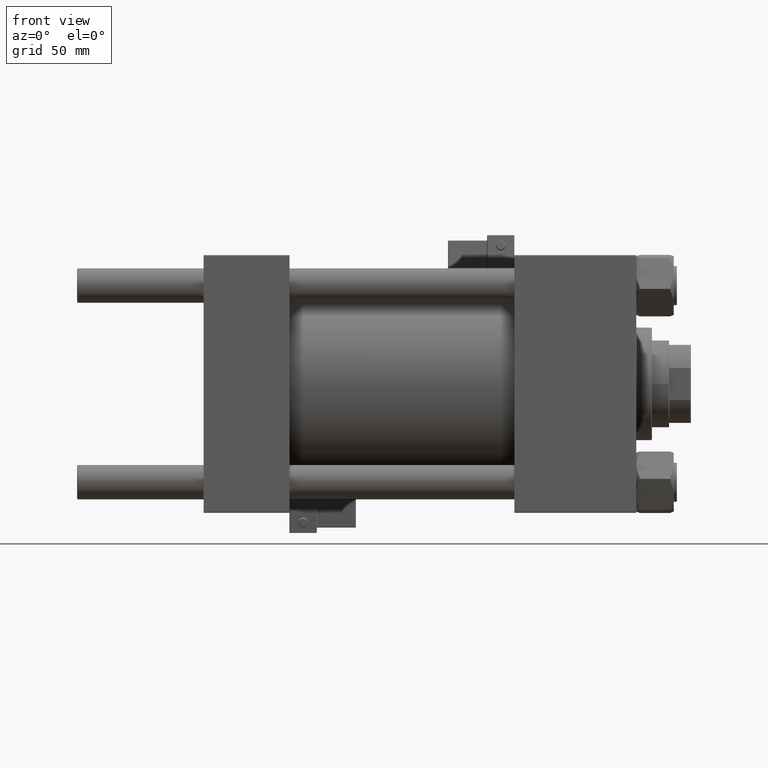
[diagram: clean part render]
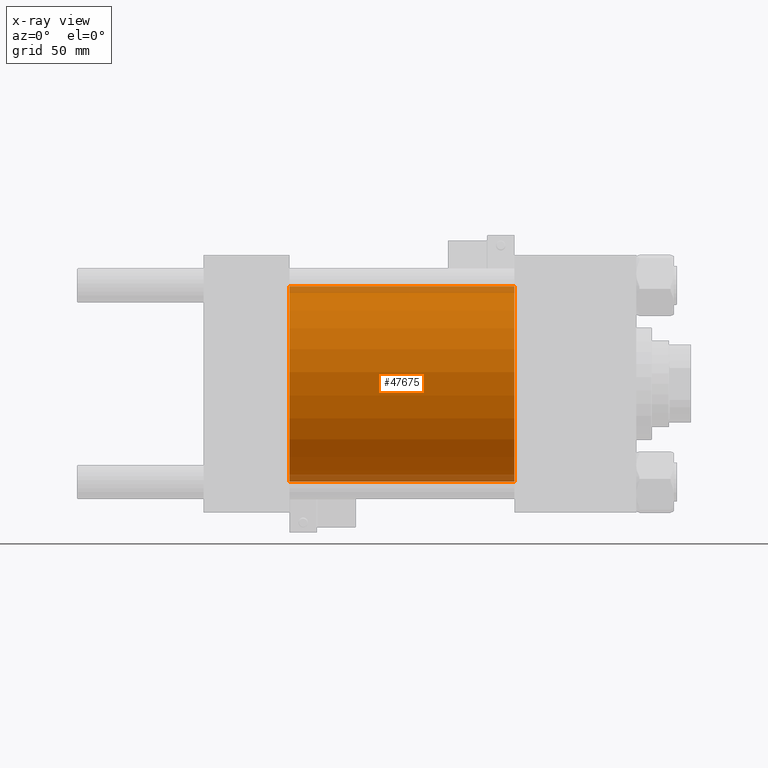
[diagram: x-ray — body ghosted, one internal face saturated and labeled with its STEP entity id]
A machine part, front view, then the same camera in x-ray: the body is ghosted and one INTERNAL B-rep face — a face not visible from any outside direction — is saturated and labeled: STEP entity #47675.
In plain terms, the highlighted cylindrical surface (partial cylindrical patch) has radius 62.5 mm, axis along (-1, -0, -0).
Its self-contained STEP definition (entity closure, byte-faithful):
#1771 = CARTESIAN_POINT ( 'NONE',  ( 55.00000000000000000, 7.654042494670957804E-15, -62.50000000000000000 ) ) ;
#2404 = VERTEX_POINT ( 'NONE', #18528 ) ;
#6608 = ORIENTED_EDGE ( 'NONE', *, *, #32010, .T. ) ;
#7379 = CIRCLE ( 'NONE', #20120, 62.50000000000000000 ) ;
#7597 = FACE_OUTER_BOUND ( 'NONE', #40720, .T. ) ;
#9268 = DIRECTION ( 'NONE',  ( 1.000000000000000000, 0.000000000000000000, 0.000000000000000000 ) ) ;
#9523 = CARTESIAN_POINT ( 'NONE',  ( 198.9999999999999716, 0.000000000000000000, 0.000000000000000000 ) ) ;
#13388 = VERTEX_POINT ( 'NONE', #35457 ) ;
#15332 = CYLINDRICAL_SURFACE ( 'NONE', #23477, 62.50000000000000000 ) ;
#17336 = EDGE_CURVE ( 'NONE', #18873, #38777, #32461, .T. ) ;
#18510 = CARTESIAN_POINT ( 'NONE',  ( 55.00000000000000000, 0.000000000000000000, 0.000000000000000000 ) ) ;
#18528 = CARTESIAN_POINT ( 'NONE',  ( 198.9999999999999716, 0.000000000000000000, 62.50000000000000000 ) ) ;
#18854 = EDGE_CURVE ( 'NONE', #13388, #38777, #7379, .T. ) ;
#18873 = VERTEX_POINT ( 'NONE', #26760 ) ;
#20120 = AXIS2_PLACEMENT_3D ( 'NONE', #18510, #31551, #38481 ) ;
#22253 = EDGE_CURVE ( 'NONE', #2404, #13388, #48780, .T. ) ;
#23477 = AXIS2_PLACEMENT_3D ( 'NONE', #51794, #40343, #35833 ) ;
#23930 = DIRECTION ( 'NONE',  ( -1.000000000000000000, -0.000000000000000000, -0.000000000000000000 ) ) ;
#24285 = CARTESIAN_POINT ( 'NONE',  ( 198.9999999999999716, 0.000000000000000000, 62.50000000000000000 ) ) ;
#26760 = CARTESIAN_POINT ( 'NONE',  ( 198.9999999999999716, 7.654042494670957804E-15, -62.50000000000000000 ) ) ;
#26772 = ORIENTED_EDGE ( 'NONE', *, *, #22253, .F. ) ;
#29575 = VECTOR ( 'NONE', #40015, 1000.000000000000000 ) ;
#30639 = CIRCLE ( 'NONE', #31482, 62.50000000000000000 ) ;
#31482 = AXIS2_PLACEMENT_3D ( 'NONE', #9523, #9268, #41503 ) ;
#31551 = DIRECTION ( 'NONE',  ( 1.000000000000000000, 0.000000000000000000, 0.000000000000000000 ) ) ;
#32010 = EDGE_CURVE ( 'NONE', #2404, #18873, #30639, .T. ) ;
#32461 = LINE ( 'NONE', #32990, #48147 ) ;
#32990 = CARTESIAN_POINT ( 'NONE',  ( 198.9999999999999716, 7.654042494670957804E-15, -62.50000000000000000 ) ) ;
#35457 = CARTESIAN_POINT ( 'NONE',  ( 55.00000000000000000, 0.000000000000000000, 62.50000000000000000 ) ) ;
#35833 = DIRECTION ( 'NONE',  ( 0.000000000000000000, 0.000000000000000000, 1.000000000000000000 ) ) ;
#38481 = DIRECTION ( 'NONE',  ( 0.000000000000000000, 0.000000000000000000, -1.000000000000000000 ) ) ;
#38777 = VERTEX_POINT ( 'NONE', #1771 ) ;
#40015 = DIRECTION ( 'NONE',  ( -1.000000000000000000, -0.000000000000000000, -0.000000000000000000 ) ) ;
#40343 = DIRECTION ( 'NONE',  ( -1.000000000000000000, -0.000000000000000000, -0.000000000000000000 ) ) ;
#40720 = EDGE_LOOP ( 'NONE', ( #6608, #50331, #42562, #26772 ) ) ;
#41503 = DIRECTION ( 'NONE',  ( 0.000000000000000000, 0.000000000000000000, -1.000000000000000000 ) ) ;
#42562 = ORIENTED_EDGE ( 'NONE', *, *, #18854, .F. ) ;
#47675 = ADVANCED_FACE ( 'NONE', ( #7597 ), #15332, .F. ) ;
#48147 = VECTOR ( 'NONE', #23930, 1000.000000000000000 ) ;
#48780 = LINE ( 'NONE', #24285, #29575 ) ;
#50331 = ORIENTED_EDGE ( 'NONE', *, *, #17336, .T. ) ;
#51794 = CARTESIAN_POINT ( 'NONE',  ( 198.9999999999999716, 0.000000000000000000, 0.000000000000000000 ) ) ;